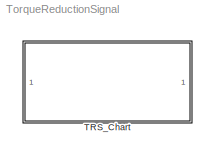
MODEL TorqueReductionSignal
KIND model
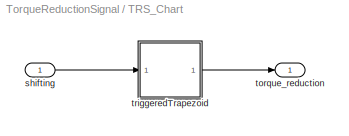
BLOCK [SubSystem] TRS_Chart
  FunctionWithSeparateData = off
  MaskHideContents = off
  MinAlgLoopOccurrences = off
  Opaque = off
  Ports = [1, 1]
  PropExecContextOutsideSubsystem = off
  RTWSystemCode = Auto
  RequestExecContextInheritance = off
  SID = 1
BLOCK [Inport] TRS_Chart/shifting
  IconDisplay = Port number
  OutDataTypeStr = boolean
  SID = 2
BLOCK [Outport] TRS_Chart/torque_reduction
  IconDisplay = Port number
  OutDataTypeStr = double
  SID = 3
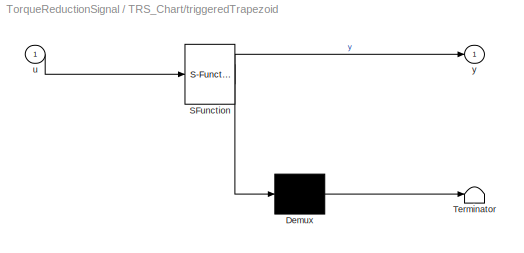
BLOCK [SubSystem] TRS_Chart/triggeredTrapezoid
  ErrorFcn = Stateflow.Translate.translate
  FunctionWithSeparateData = off
  MaskHideContents = off
  MinAlgLoopOccurrences = off
  Opaque = off
  PermitHierarchicalResolution = ExplicitOnly
  Ports = [1, 1]
  PropExecContextOutsideSubsystem = off
  RTWSystemCode = Auto
  RequestExecContextInheritance = off
  SFBlockType = Chart
  SID = 6
  TreatAsAtomicUnit = on
BLOCK [Demux] TRS_Chart/triggeredTrapezoid/ Demux 
  Outputs = 1
  Ports = [1, 1]
  SID = 6::36
BLOCK [S-Function] TRS_Chart/triggeredTrapezoid/ SFunction 
  EnableBusSupport = off
  FunctionName = sf_sfun
  PortCounts = [1 2]
  Ports = [1, 2]
  SID = 6::35
  Tag = Stateflow S-Function TorqueReductionSignal 1
BLOCK [Terminator] TRS_Chart/triggeredTrapezoid/ Terminator 
  SID = 6::37
BLOCK [Inport] TRS_Chart/triggeredTrapezoid/u
  IconDisplay = Port number
  SID = 6::29
BLOCK [Outport] TRS_Chart/triggeredTrapezoid/y
  IconDisplay = Port number
  SID = 6::31
LINE TRS_Chart/shifting:1 -> TRS_Chart/triggeredTrapezoid:1
LINE TRS_Chart/triggeredTrapezoid/ Demux :1 -> TRS_Chart/triggeredTrapezoid/ Terminator :1
LINE TRS_Chart/triggeredTrapezoid/ SFunction :1 -> TRS_Chart/triggeredTrapezoid/ Demux :1
LINE TRS_Chart/triggeredTrapezoid/ SFunction :2 -> TRS_Chart/triggeredTrapezoid/y:1
LINE TRS_Chart/triggeredTrapezoid/u:1 -> TRS_Chart/triggeredTrapezoid/ SFunction :1
LINE TRS_Chart/triggeredTrapezoid:1 -> TRS_Chart/torque_reduction:1
CHART TRS_Chart/triggeredTrapezoid states=4 transitions=7
  STATE_LABEL 'Low\\nentry: y = offset;'
  STATE_LABEL 'Rising\\nduring: y = y + rise_step;'
  STATE_LABEL 'Falling\\nduring: y = y - fall_step;'
  STATE_LABEL 'High\\nentry: y = amplitude+offset;'
